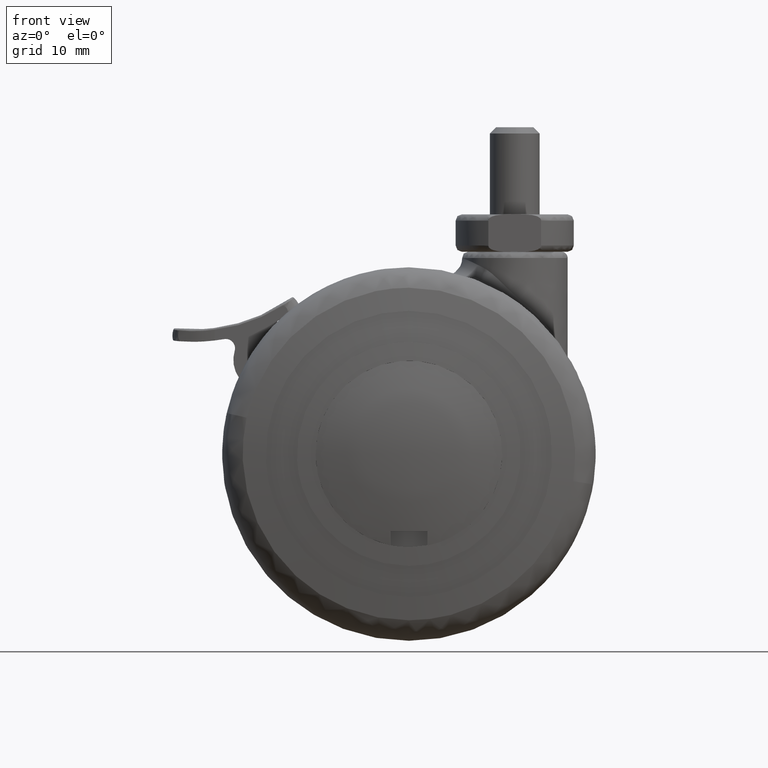
[diagram: clean part render]
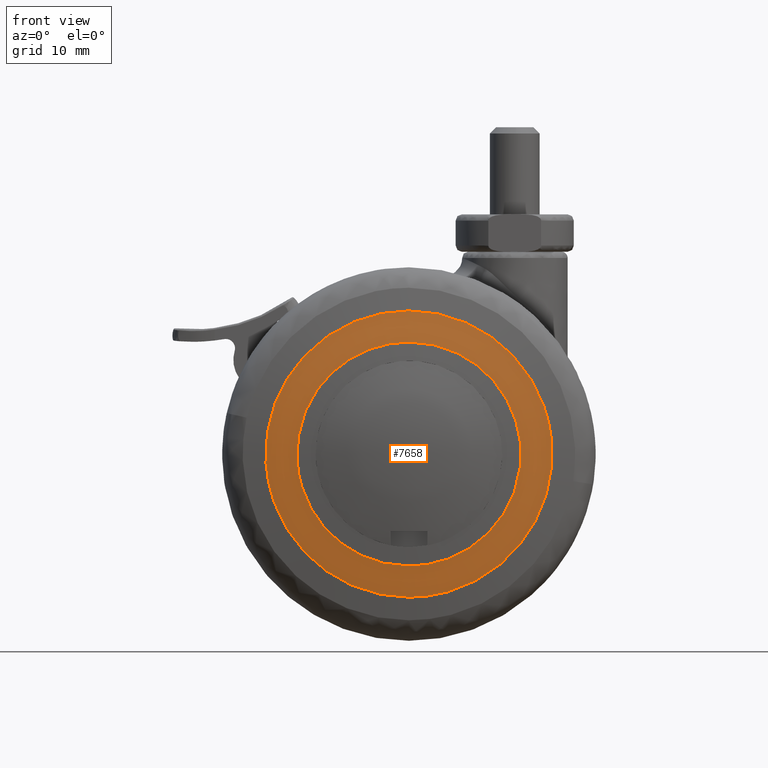
[diagram: same view with one face highlighted and labeled with its STEP entity id]
A machine part, front view. The second image highlights one B-rep face of the part: STEP entity #7658.
In plain terms, the highlighted face is a freeform B-spline surface patch.
Its self-contained STEP definition (entity closure, byte-faithful):
#5959=CARTESIAN_POINT('',(-17.966428118574090,-21.664317093810698,-1.098845148003625));
#5960=VERTEX_POINT('',#5959);
#5966=CARTESIAN_POINT('',(0.0,-21.664317093810698,-18.0));
#5967=VERTEX_POINT('',#5966);
#5968=CARTESIAN_POINT('',(0.0,-21.664317093810698,-18.0));
#5969=CARTESIAN_POINT('',(-16.932736174811232,-21.664317093810702,-18.000000000000004));
#5970=CARTESIAN_POINT('',(-17.966428118574090,-21.664317093810702,-1.098845148003625));
#5978=(BOUNDED_CURVE()B_SPLINE_CURVE(2,(#5968,#5969,#5970),.UNSPECIFIED.,.F.,.U.)B_SPLINE_CURVE_WITH_KNOTS((3,3),(0.500000000000000,0.739333236562665),.UNSPECIFIED.)CURVE()GEOMETRIC_REPRESENTATION_ITEM()RATIONAL_B_SPLINE_CURVE((1.0,0.719603671896478,0.976072629595379))REPRESENTATION_ITEM(''));
#5979=EDGE_CURVE('',#5967,#5960,#5978,.T.);
#5981=CARTESIAN_POINT('',(17.874174640093440,-21.664317093810698,2.124589592067359));
#5982=VERTEX_POINT('',#5981);
#5983=CARTESIAN_POINT('',(17.874174640093440,-21.664317093810695,2.124589592067359));
#5984=CARTESIAN_POINT('',(17.999999999999996,-21.664317093810691,1.066020697086458));
#5985=CARTESIAN_POINT('',(18.0,-21.664317093810698,0.0));
#5986=CARTESIAN_POINT('',(18.000000000000007,-21.664317093810698,-18.000000000000007));
#5987=CARTESIAN_POINT('',(0.0,-21.664317093810698,-18.0));
#5995=(BOUNDED_CURVE()B_SPLINE_CURVE(2,(#5983,#5984,#5985,#5986,#5987),.UNSPECIFIED.,.F.,.U.)B_SPLINE_CURVE_WITH_KNOTS((3,2,3),(0.229562725323310,0.250000000000000,0.500000000000000),.UNSPECIFIED.)CURVE()GEOMETRIC_REPRESENTATION_ITEM()RATIONAL_B_SPLINE_CURVE((0.956027247741810,0.976056243344679,1.0,0.707106781186547,1.0))REPRESENTATION_ITEM(''));
#5996=EDGE_CURVE('',#5982,#5967,#5995,.T.);
#6044=CARTESIAN_POINT('',(0.0,-21.664317093810698,18.0));
#6045=VERTEX_POINT('',#6044);
#6046=CARTESIAN_POINT('',(0.0,-21.664317093810698,18.0));
#6047=CARTESIAN_POINT('',(15.987165454982591,-21.664317093810691,18.0));
#6048=CARTESIAN_POINT('',(17.874174640093440,-21.664317093810695,2.124589592067359));
#6056=(BOUNDED_CURVE()B_SPLINE_CURVE(2,(#6046,#6047,#6048),.UNSPECIFIED.,.F.,.U.)B_SPLINE_CURVE_WITH_KNOTS((3,3),(0.0,0.229562725323310),.UNSPECIFIED.)CURVE()GEOMETRIC_REPRESENTATION_ITEM()RATIONAL_B_SPLINE_CURVE((1.0,0.731050537841869,0.956027247741810))REPRESENTATION_ITEM(''));
#6057=EDGE_CURVE('',#6045,#5982,#6056,.T.);
#6059=CARTESIAN_POINT('',(-17.966428118574090,-21.664317093810702,-1.098845148003625));
#6060=CARTESIAN_POINT('',(-18.000000000000004,-21.664317093810698,-0.549935417519627));
#6061=CARTESIAN_POINT('',(-18.0,-21.664317093810698,0.0));
#6062=CARTESIAN_POINT('',(-18.000000000000007,-21.664317093810698,18.000000000000007));
#6063=CARTESIAN_POINT('',(0.0,-21.664317093810698,18.0));
#6071=(BOUNDED_CURVE()B_SPLINE_CURVE(2,(#6059,#6060,#6061,#6062,#6063),.UNSPECIFIED.,.F.,.U.)B_SPLINE_CURVE_WITH_KNOTS((3,2,3),(0.739333236562665,0.750000000000000,1.0),.UNSPECIFIED.)CURVE()GEOMETRIC_REPRESENTATION_ITEM()RATIONAL_B_SPLINE_CURVE((0.976072629595379,0.987503109290069,1.0,0.707106781186547,1.0))REPRESENTATION_ITEM(''));
#6072=EDGE_CURVE('',#5960,#6045,#6071,.T.);
#6115=CARTESIAN_POINT('',(22.839222195741229,-20.972059654651868,2.714761406252123));
#6116=VERTEX_POINT('',#6115);
#6117=CARTESIAN_POINT('',(0.0,-20.972059654648898,-23.0));
#6118=VERTEX_POINT('',#6117);
#6119=CARTESIAN_POINT('',(22.839222195741236,-20.972059654651865,2.714761406252123));
#6120=CARTESIAN_POINT('',(23.000000000000004,-20.972059654648895,1.362141619183499));
#6121=CARTESIAN_POINT('',(23.0,-20.972059654648898,0.0));
#6122=CARTESIAN_POINT('',(22.999999999999993,-20.972059654648895,-22.999999999999993));
#6123=CARTESIAN_POINT('',(0.0,-20.972059654648898,-23.0));
#6131=(BOUNDED_CURVE()B_SPLINE_CURVE(2,(#6119,#6120,#6121,#6122,#6123),.UNSPECIFIED.,.F.,.U.)B_SPLINE_CURVE_WITH_KNOTS((3,2,3),(0.229562665840038,0.250000000000000,0.500000000000000),.UNSPECIFIED.)CURVE()GEOMETRIC_REPRESENTATION_ITEM()RATIONAL_B_SPLINE_CURVE((0.956027131151914,0.976056173655690,1.0,0.707106781186548,1.0))REPRESENTATION_ITEM(''));
#6132=EDGE_CURVE('',#6116,#6118,#6131,.T.);
#6134=CARTESIAN_POINT('',(-22.957102099430809,-20.972059654647300,-1.404088029826050));
#6135=VERTEX_POINT('',#6134);
#6136=CARTESIAN_POINT('',(0.0,-20.972059654648898,-23.0));
#6137=CARTESIAN_POINT('',(-21.636266335458412,-20.972059654648902,-23.000000000000004));
#6138=CARTESIAN_POINT('',(-22.957102099430809,-20.972059654647293,-1.404088029826050));
#6146=(BOUNDED_CURVE()B_SPLINE_CURVE(2,(#6136,#6137,#6138),.UNSPECIFIED.,.F.,.U.)B_SPLINE_CURVE_WITH_KNOTS((3,3),(0.500000000000000,0.739333175543654),.UNSPECIFIED.)CURVE()GEOMETRIC_REPRESENTATION_ITEM()RATIONAL_B_SPLINE_CURVE((1.0,0.719603743384697,0.976072498819744))REPRESENTATION_ITEM(''));
#6147=EDGE_CURVE('',#6118,#6135,#6146,.T.);
#6214=CARTESIAN_POINT('',(0.0,-20.972059654648898,23.0));
#6215=VERTEX_POINT('',#6214);
#6216=CARTESIAN_POINT('',(0.0,-20.972059654648898,23.0));
#6217=CARTESIAN_POINT('',(20.428037507461912,-20.972059654648902,22.999999999999989));
#6218=CARTESIAN_POINT('',(22.839222195741236,-20.972059654651865,2.714761406252123));
#6226=(BOUNDED_CURVE()B_SPLINE_CURVE(2,(#6216,#6217,#6218),.UNSPECIFIED.,.F.,.U.)B_SPLINE_CURVE_WITH_KNOTS((3,3),(0.0,0.229562665840038),.UNSPECIFIED.)CURVE()GEOMETRIC_REPRESENTATION_ITEM()RATIONAL_B_SPLINE_CURVE((1.0,0.731050607530858,0.956027131151914))REPRESENTATION_ITEM(''));
#6227=EDGE_CURVE('',#6215,#6116,#6226,.T.);
#6261=CARTESIAN_POINT('',(-22.957102099430809,-20.972059654647293,-1.404088029826050));
#6262=CARTESIAN_POINT('',(-23.000000000000004,-20.972059654648898,-0.702699326344414));
#6263=CARTESIAN_POINT('',(-23.0,-20.972059654648898,0.0));
#6264=CARTESIAN_POINT('',(-22.999999999999993,-20.972059654648895,22.999999999999993));
#6265=CARTESIAN_POINT('',(0.0,-20.972059654648898,23.0));
#6273=(BOUNDED_CURVE()B_SPLINE_CURVE(2,(#6261,#6262,#6263,#6264,#6265),.UNSPECIFIED.,.F.,.U.)B_SPLINE_CURVE_WITH_KNOTS((3,2,3),(0.739333175543654,0.750000000000000,1.0),.UNSPECIFIED.)CURVE()GEOMETRIC_REPRESENTATION_ITEM()RATIONAL_B_SPLINE_CURVE((0.976072498819744,0.987503037801851,1.0,0.707106781186548,1.0))REPRESENTATION_ITEM(''));
#6274=EDGE_CURVE('',#6135,#6215,#6273,.T.);
#7622=CARTESIAN_POINT('',(-25.085178688016942,-18.481667786812679,-25.085733034644559));
#7623=CARTESIAN_POINT('',(-12.632796017781560,-20.601373107450254,-25.266150369068097));
#7624=CARTESIAN_POINT('',(12.632866369248905,-20.601373107450254,-25.266150369068097));
#7625=CARTESIAN_POINT('',(25.085316391142563,-18.481644346248704,-25.085731039516258));
#7626=CARTESIAN_POINT('',(-25.265600066756605,-20.601467467228911,-12.633079200219525));
#7627=CARTESIAN_POINT('',(-12.724313703210621,-22.751884999999959,-12.724594892373270));
#7628=CARTESIAN_POINT('',(12.724384564335800,-22.751884999999959,-12.724594892373270));
#7629=CARTESIAN_POINT('',(25.265738745838640,-20.601443688266901,-12.633078188254110));
#7630=CARTESIAN_POINT('',(-25.265600066756605,-20.601467467228911,12.633078174715312));
#7631=CARTESIAN_POINT('',(-12.724313703210621,-22.751884999999959,12.724593859440169));
#7632=CARTESIAN_POINT('',(12.724384564335800,-22.751884999999959,12.724593859440169));
#7633=CARTESIAN_POINT('',(25.265738745838640,-20.601443688266901,12.633077162749981));
#7634=CARTESIAN_POINT('',(-25.085178717099584,-18.481668128509249,25.085731027365643));
#7635=CARTESIAN_POINT('',(-12.632796032532795,-20.601373454079482,25.266148347563441));
#7636=CARTESIAN_POINT('',(12.632866384000224,-20.601373454079482,25.266148347563441));
#7637=CARTESIAN_POINT('',(25.085316420225361,-18.481644687945217,25.085729032237499));
#7645=(BOUNDED_SURFACE()B_SPLINE_SURFACE(2,2,((#7622,#7626,#7630,#7634),(#7623,#7627,#7631,#7635),(#7624,#7628,#7632,#7636),(#7625,#7629,#7633,#7637)),.UNSPECIFIED.,.F.,.F.,.U.)B_SPLINE_SURFACE_WITH_KNOTS((3,1,3),(3,1,3),(44.243983181762687,68.995994311008900,93.748143283081049),(44.243436197662362,68.995994311008886,93.748550415039063),.UNSPECIFIED.)GEOMETRIC_REPRESENTATION_ITEM()RATIONAL_B_SPLINE_SURFACE(((1.014488583993142,1.007244131909832,1.007244131909832,1.014488582816989),(1.007244452083311,1.0,1.0,1.007244450907158),(1.007244452083311,1.0,1.0,1.007244450907158),(1.014488664677850,1.007244212594540,1.007244212594540,1.014488663501697)))REPRESENTATION_ITEM('')SURFACE());
#7646=ORIENTED_EDGE('',*,*,#6274,.F.);
#7647=ORIENTED_EDGE('',*,*,#6147,.F.);
#7648=ORIENTED_EDGE('',*,*,#6132,.F.);
#7649=ORIENTED_EDGE('',*,*,#6227,.F.);
#7650=EDGE_LOOP('',(#7646,#7647,#7648,#7649));
#7651=FACE_OUTER_BOUND('',#7650,.T.);
#7652=ORIENTED_EDGE('',*,*,#5979,.T.);
#7653=ORIENTED_EDGE('',*,*,#6072,.T.);
#7654=ORIENTED_EDGE('',*,*,#6057,.T.);
#7655=ORIENTED_EDGE('',*,*,#5996,.T.);
#7656=EDGE_LOOP('',(#7652,#7653,#7654,#7655));
#7657=FACE_BOUND('',#7656,.T.);
#7658=ADVANCED_FACE('',(#7651,#7657),#7645,.T.);